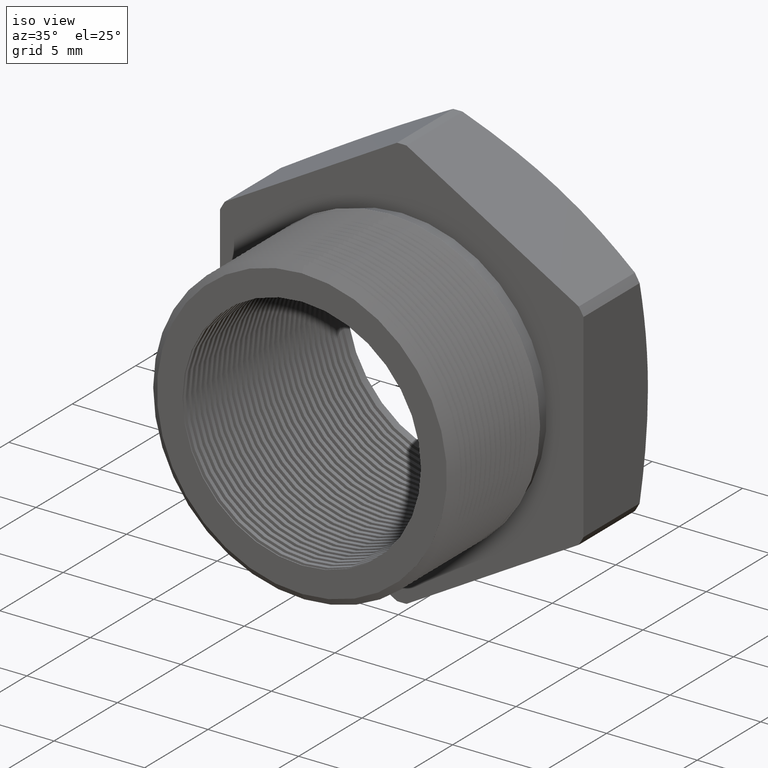
[diagram: clean part render]
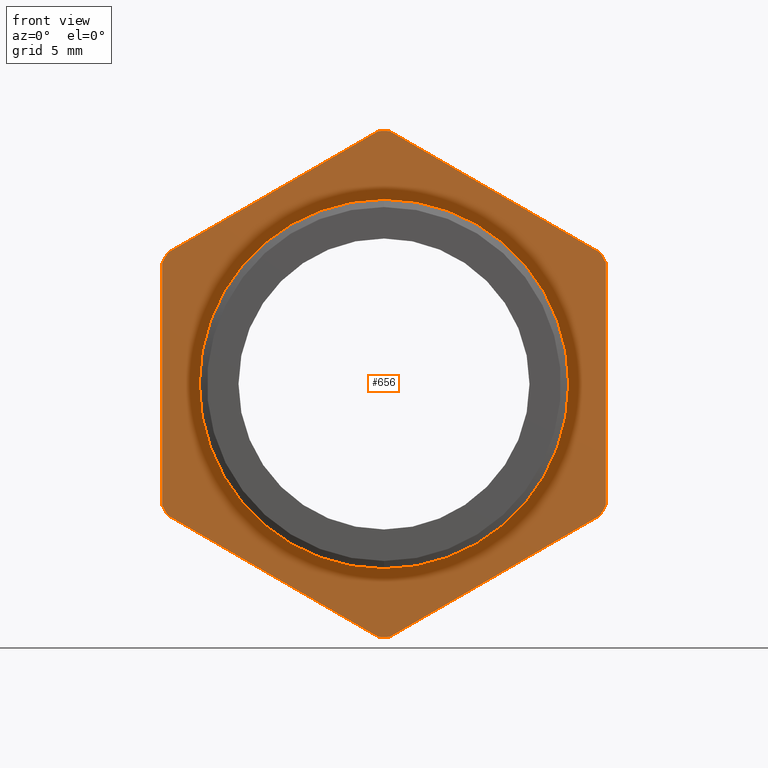
[diagram: tour spotlight — one face highlighted and labeled with its STEP entity id]
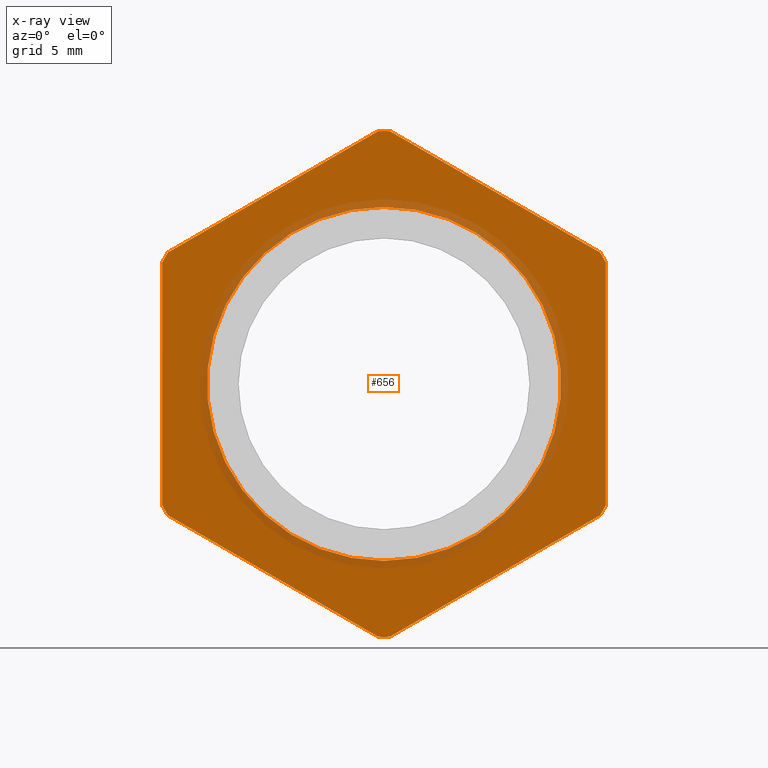
[diagram: x-ray of the same camera — body ghosted, this tour face saturated]
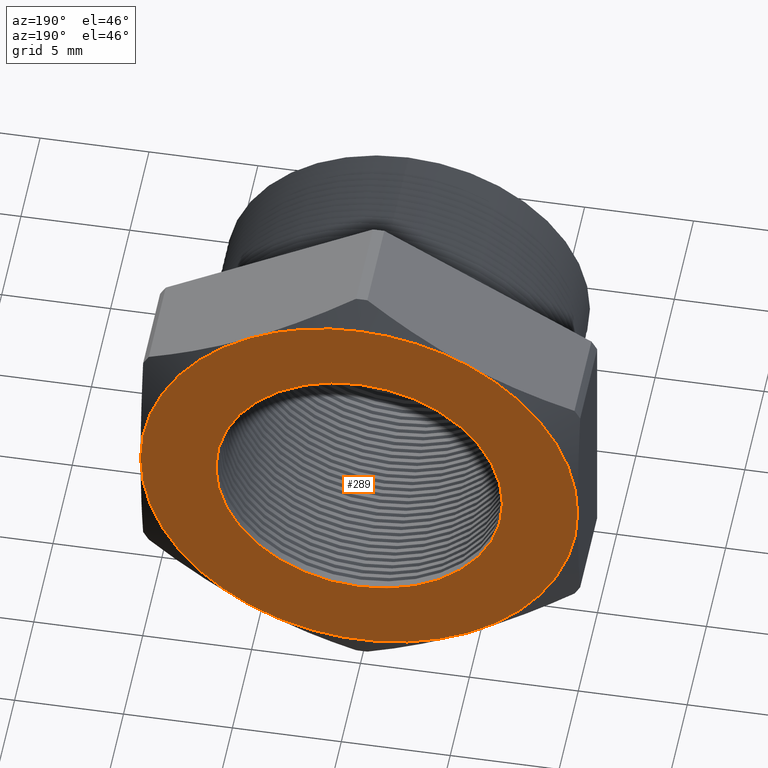
[diagram: tour spotlight — one face highlighted and labeled with its STEP entity id]
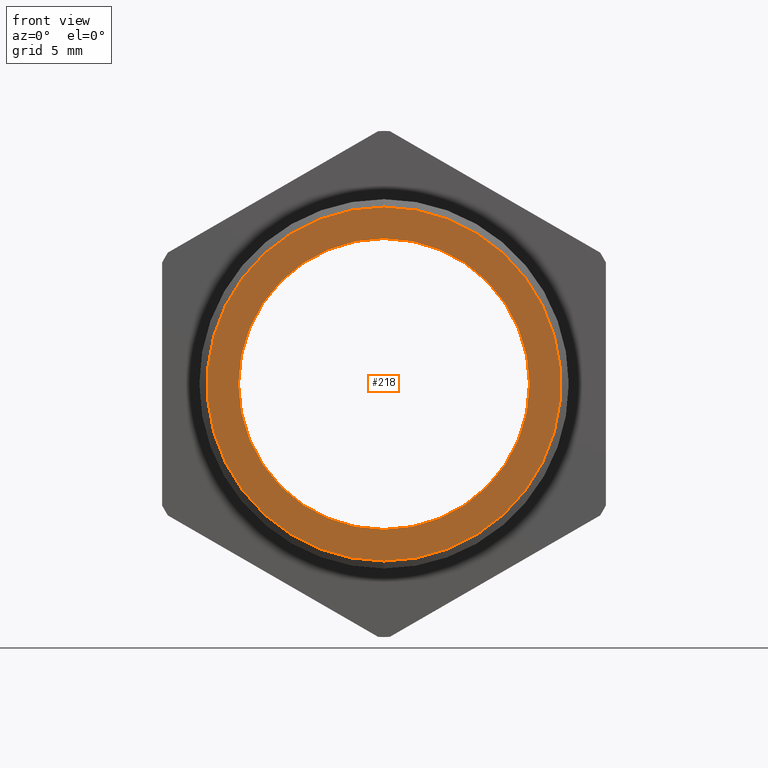
[diagram: tour spotlight — one face highlighted and labeled with its STEP entity id]
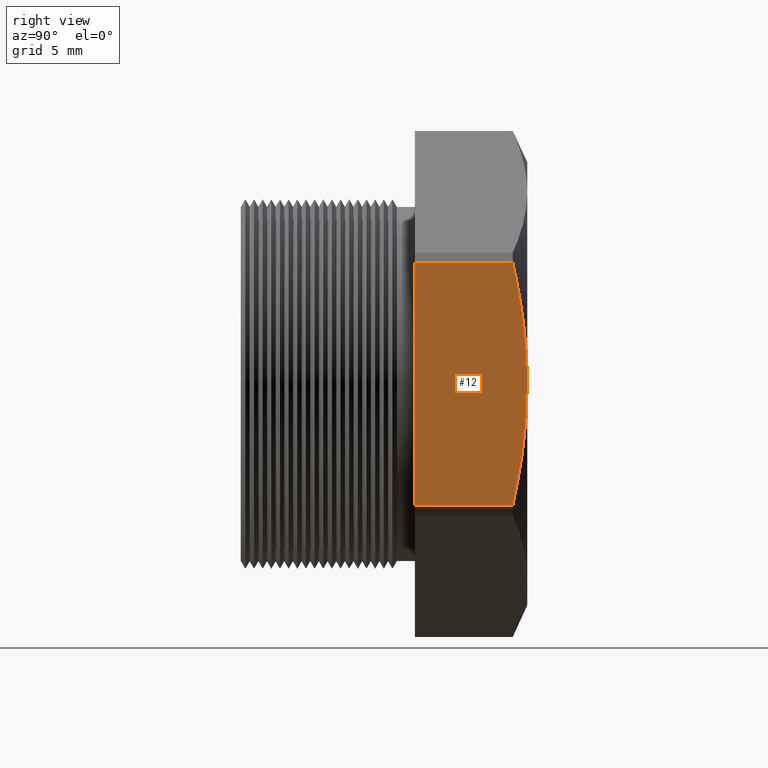
[diagram: tour spotlight — one face highlighted and labeled with its STEP entity id]
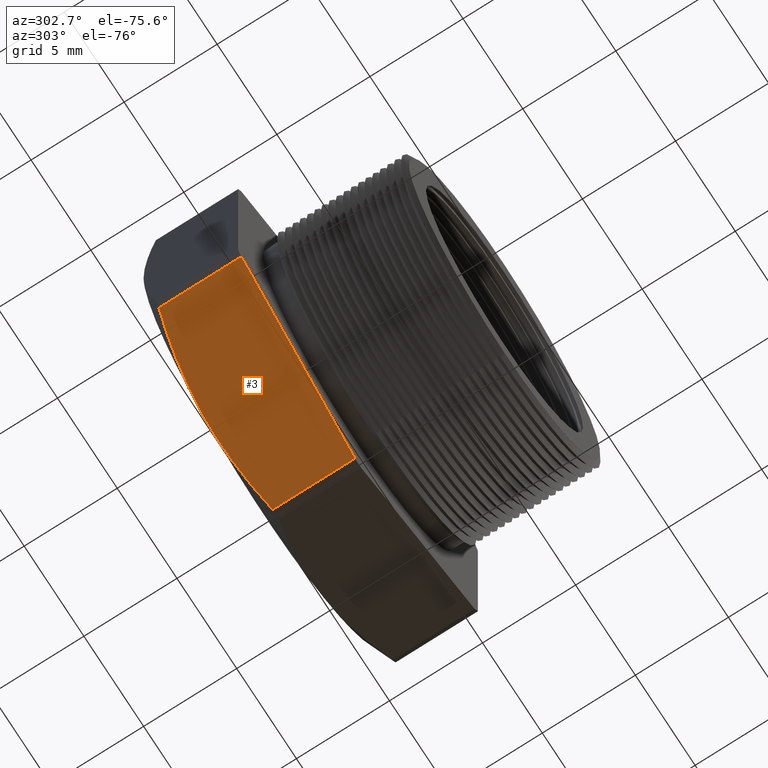
[diagram: tour spotlight — one face highlighted and labeled with its STEP entity id]
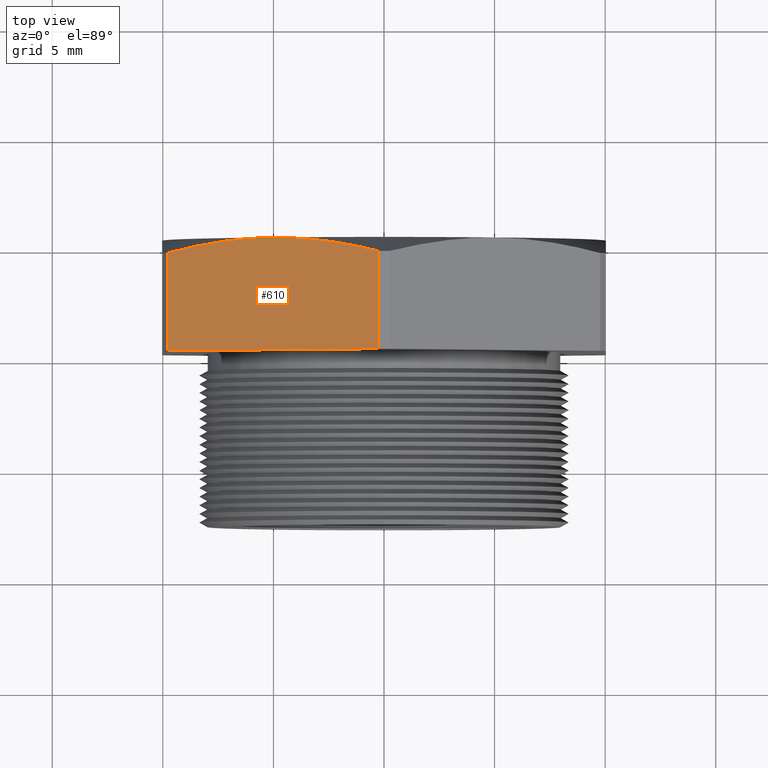
[diagram: tour spotlight — one face highlighted and labeled with its STEP entity id]
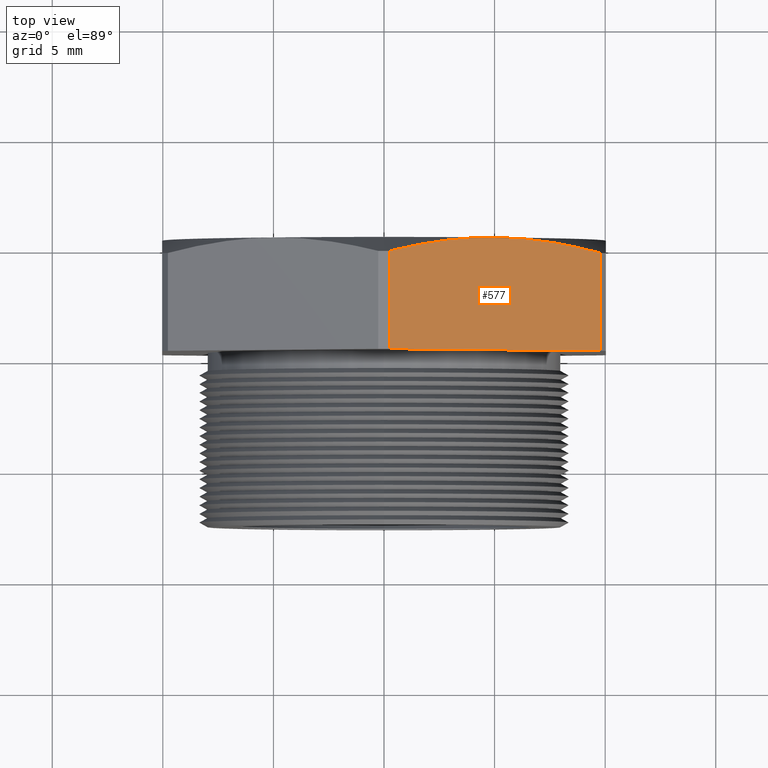
[diagram: tour spotlight — one face highlighted and labeled with its STEP entity id]
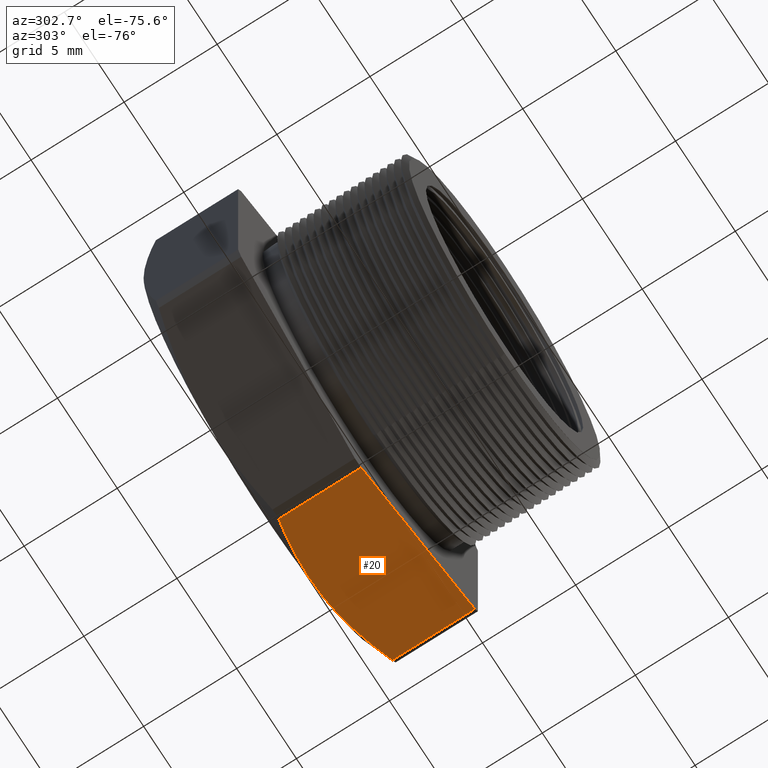
[diagram: tour spotlight — one face highlighted and labeled with its STEP entity id]
A machine part: a face-by-face anatomy tour. The part has 287 B-rep faces; the first image is the clean iso view, then the 8 largest visible faces are spotlighted one at a time (largest first), each with its STEP entity span.

Face 1 — front view, entity #656. An x-ray twin of the same camera follows (body ghosted, this face saturated) — the face is partly hidden behind the body. In plain terms, the highlighted planar face has unit normal (0, -1, -0).
Definition (entity closure, byte-faithful):
#10 = EDGE_CURVE ( 'NONE', #426, #474, #1532, .T. ) ;
#13 = EDGE_CURVE ( 'NONE', #366, #368, #1523, .T. ) ;
#23 = EDGE_CURVE ( 'NONE', #533, #305, #1590, .T. ) ;
#264 = VERTEX_POINT ( 'NONE', #2033 ) ;
#275 = EDGE_CURVE ( 'NONE', #278, #264, #2015, .T. ) ;
#278 = VERTEX_POINT ( 'NONE', #2008 ) ;
#305 = VERTEX_POINT ( 'NONE', #2074 ) ;
#338 = VERTEX_POINT ( 'NONE', #2141 ) ;
#366 = VERTEX_POINT ( 'NONE', #2210 ) ;
#368 = VERTEX_POINT ( 'NONE', #2207 ) ;
#371 = VERTEX_POINT ( 'NONE', #2200 ) ;
#376 = EDGE_CURVE ( 'NONE', #264, #366, #2195, .T. ) ;
#378 = EDGE_CURVE ( 'NONE', #305, #371, #2253, .T. ) ;
#426 = VERTEX_POINT ( 'NONE', #2333 ) ;
#428 = EDGE_CURVE ( 'NONE', #338, #426, #2332, .T. ) ;
#474 = VERTEX_POINT ( 'NONE', #2422 ) ;
#514 = EDGE_CURVE ( 'NONE', #368, #533, #2480, .T. ) ;
#523 = VERTEX_POINT ( 'NONE', #2525 ) ;
#529 = EDGE_CURVE ( 'NONE', #474, #523, #2515, .T. ) ;
#533 = VERTEX_POINT ( 'NONE', #2510 ) ;
#565 = VERTEX_POINT ( 'NONE', #2578 ) ;
#567 = EDGE_CURVE ( 'NONE', #571, #565, #2573, .T. ) ;
#571 = VERTEX_POINT ( 'NONE', #2567 ) ;
#583 = EDGE_CURVE ( 'NONE', #599, #586, #2618, .T. ) ;
#586 = VERTEX_POINT ( 'NONE', #2609 ) ;
#599 = VERTEX_POINT ( 'NONE', #2638 ) ;
#616 = EDGE_CURVE ( 'NONE', #371, #599, #2669, .T. ) ;
#648 = EDGE_CURVE ( 'NONE', #586, #338, #2731, .T. ) ;
#651 = EDGE_CURVE ( 'NONE', #523, #278, #2775, .T. ) ;
#653 = EDGE_LOOP ( 'NONE', ( #682, #678 ) ) ;
#656 = ADVANCED_FACE ( 'NONE', ( #2761, #2760 ), #2763, .T. ) ;
#663 = EDGE_CURVE ( 'NONE', #565, #571, #2804, .T. ) ;
#668 = ORIENTED_EDGE ( 'NONE', *, *, #648, .T. ) ;
#669 = ORIENTED_EDGE ( 'NONE', *, *, #428, .T. ) ;
#670 = ORIENTED_EDGE ( 'NONE', *, *, #616, .T. ) ;
#671 = ORIENTED_EDGE ( 'NONE', *, *, #583, .T. ) ;
#672 = EDGE_LOOP ( 'NONE', ( #674, #675, #673, #670, #671, #668, #669, #687, #689, #683, #684, #686, #685 ) ) ;
#673 = ORIENTED_EDGE ( 'NONE', *, *, #378, .T. ) ;
#674 = ORIENTED_EDGE ( 'NONE', *, *, #514, .T. ) ;
#675 = ORIENTED_EDGE ( 'NONE', *, *, #23, .T. ) ;
#678 = ORIENTED_EDGE ( 'NONE', *, *, #663, .F. ) ;
#682 = ORIENTED_EDGE ( 'NONE', *, *, #567, .F. ) ;
#683 = ORIENTED_EDGE ( 'NONE', *, *, #651, .T. ) ;
#684 = ORIENTED_EDGE ( 'NONE', *, *, #275, .T. ) ;
#685 = ORIENTED_EDGE ( 'NONE', *, *, #13, .T. ) ;
#686 = ORIENTED_EDGE ( 'NONE', *, *, #376, .T. ) ;
#687 = ORIENTED_EDGE ( 'NONE', *, *, #10, .T. ) ;
#689 = ORIENTED_EDGE ( 'NONE', *, *, #529, .T. ) ;
#1517 = CARTESIAN_POINT ( 'NONE',  ( 0.4337500000000000200, 0.2075548905829479300, -0.2056810333988043400 ) ) ;
#1523 = LINE ( 'NONE', #1517, #1576 ) ;
#1525 = DIRECTION ( 'NONE',  ( 0.0000000000000000000, 0.0000000000000000000, -1.000000000000000000 ) ) ;
#1526 = VECTOR ( 'NONE', #1525, 39.37007874015748100 ) ;
#1527 = CARTESIAN_POINT ( 'NONE',  ( -0.3949999999999999600, 0.2075548905829479300, 0.0000000000000000000 ) ) ;
#1532 = LINE ( 'NONE', #1527, #1526 ) ;
#1575 = DIRECTION ( 'NONE',  ( 0.8660254037844388200, 0.0000000000000000000, 0.4999999999999998300 ) ) ;
#1576 = VECTOR ( 'NONE', #1575, 39.37007874015748100 ) ;
#1587 = DIRECTION ( 'NONE',  ( -2.994746533912406200E-016, 0.0000000000000000000, 1.000000000000000000 ) ) ;
#1588 = VECTOR ( 'NONE', #1587, 39.37007874015748100 ) ;
#1589 = CARTESIAN_POINT ( 'NONE',  ( 0.3949999999999999600, 0.2075548905829479300, 2.395797227129924000E-017 ) ) ;
#1590 = LINE ( 'NONE', #1589, #1588 ) ;
#2008 = CARTESIAN_POINT ( 'NONE',  ( -0.01026000026703685300, 0.2075548905829479300, -0.4501830987437449000 ) ) ;
#2011 = DIRECTION ( 'NONE',  ( 0.0000000000000000000, 0.0000000000000000000, -1.000000000000000000 ) ) ;
#2012 = DIRECTION ( 'NONE',  ( -0.0000000000000000000, -1.000000000000000000, -0.0000000000000000000 ) ) ;
#2013 = CARTESIAN_POINT ( 'NONE',  ( 0.0000000000000000000, 0.2075548905829479300, 0.0000000000000000000 ) ) ;
#2014 = AXIS2_PLACEMENT_3D ( 'NONE', #2013, #2012, #2011 ) ;
#2015 = CIRCLE ( 'NONE', #2014, 0.4502999999999999800 ) ;
#2033 = CARTESIAN_POINT ( 'NONE',  ( 0.0000000000000000000, 0.2075548905829479300, -0.4502999999999999800 ) ) ;
#2074 = CARTESIAN_POINT ( 'NONE',  ( 0.3949999999999999100, 0.2075548905829479300, 0.2162061284977834200 ) ) ;
#2141 = CARTESIAN_POINT ( 'NONE',  ( -0.3847399997329629100, 0.2075548905829479300, 0.2339769702459617000 ) ) ;
#2193 = CARTESIAN_POINT ( 'NONE',  ( 0.0000000000000000000, 0.2075548905829479300, 0.0000000000000000000 ) ) ;
#2194 = AXIS2_PLACEMENT_3D ( 'NONE', #2193, #2255, #2254 ) ;
#2195 = CIRCLE ( 'NONE', #2194, 0.4502999999999999800 ) ;
#2200 = CARTESIAN_POINT ( 'NONE',  ( 0.3847399997329629100, 0.2075548905829479300, 0.2339769702459617000 ) ) ;
#2207 = CARTESIAN_POINT ( 'NONE',  ( 0.3847399997329628000, 0.2075548905829479300, -0.2339769702459618400 ) ) ;
#2210 = CARTESIAN_POINT ( 'NONE',  ( 0.01026000026703718800, 0.2075548905829479300, -0.4501830987437449000 ) ) ;
#2249 = DIRECTION ( 'NONE',  ( 0.0000000000000000000, 0.0000000000000000000, -1.000000000000000000 ) ) ;
#2250 = DIRECTION ( 'NONE',  ( -0.0000000000000000000, -1.000000000000000000, -0.0000000000000000000 ) ) ;
#2251 = CARTESIAN_POINT ( 'NONE',  ( 0.0000000000000000000, 0.2075548905829479300, 0.0000000000000000000 ) ) ;
#2252 = AXIS2_PLACEMENT_3D ( 'NONE', #2251, #2250, #2249 ) ;
#2253 = CIRCLE ( 'NONE', #2252, 0.4502999999999999800 ) ;
#2254 = DIRECTION ( 'NONE',  ( 0.0000000000000000000, 0.0000000000000000000, -1.000000000000000000 ) ) ;
#2255 = DIRECTION ( 'NONE',  ( -0.0000000000000000000, -1.000000000000000000, -0.0000000000000000000 ) ) ;
#2328 = DIRECTION ( 'NONE',  ( 0.0000000000000000000, 0.0000000000000000000, -1.000000000000000000 ) ) ;
#2329 = DIRECTION ( 'NONE',  ( -0.0000000000000000000, -1.000000000000000000, -0.0000000000000000000 ) ) ;
#2330 = CARTESIAN_POINT ( 'NONE',  ( 0.0000000000000000000, 0.2075548905829479300, 0.0000000000000000000 ) ) ;
#2331 = AXIS2_PLACEMENT_3D ( 'NONE', #2330, #2329, #2328 ) ;
#2332 = CIRCLE ( 'NONE', #2331, 0.4502999999999999800 ) ;
#2333 = CARTESIAN_POINT ( 'NONE',  ( -0.3949999999999999600, 0.2075548905829479300, 0.2162061284977833100 ) ) ;
#2422 = CARTESIAN_POINT ( 'NONE',  ( -0.3949999999999999600, 0.2075548905829479300, -0.2162061284977833100 ) ) ;
#2476 = DIRECTION ( 'NONE',  ( 0.0000000000000000000, 0.0000000000000000000, -1.000000000000000000 ) ) ;
#2477 = DIRECTION ( 'NONE',  ( -0.0000000000000000000, -1.000000000000000000, -0.0000000000000000000 ) ) ;
#2478 = CARTESIAN_POINT ( 'NONE',  ( 0.0000000000000000000, 0.2075548905829479300, 0.0000000000000000000 ) ) ;
#2479 = AXIS2_PLACEMENT_3D ( 'NONE', #2478, #2477, #2476 ) ;
#2480 = CIRCLE ( 'NONE', #2479, 0.4502999999999999800 ) ;
#2510 = CARTESIAN_POINT ( 'NONE',  ( 0.3950000000000000200, 0.2075548905829479300, -0.2162061284977832000 ) ) ;
#2511 = DIRECTION ( 'NONE',  ( 0.0000000000000000000, 0.0000000000000000000, -1.000000000000000000 ) ) ;
#2512 = DIRECTION ( 'NONE',  ( -0.0000000000000000000, -1.000000000000000000, -0.0000000000000000000 ) ) ;
#2513 = CARTESIAN_POINT ( 'NONE',  ( 0.0000000000000000000, 0.2075548905829479300, 0.0000000000000000000 ) ) ;
#2514 = AXIS2_PLACEMENT_3D ( 'NONE', #2513, #2512, #2511 ) ;
#2515 = CIRCLE ( 'NONE', #2514, 0.4502999999999999800 ) ;
#2525 = CARTESIAN_POINT ( 'NONE',  ( -0.3847399997329630800, 0.2075548905829479300, -0.2339769702459614000 ) ) ;
#2567 = CARTESIAN_POINT ( 'NONE',  ( 0.0000000000000000000, 0.2075548905829479300, -0.3150000000000000000 ) ) ;
#2569 = DIRECTION ( 'NONE',  ( 0.0000000000000000000, 0.0000000000000000000, -1.000000000000000000 ) ) ;
#2570 = DIRECTION ( 'NONE',  ( -0.0000000000000000000, -1.000000000000000000, -0.0000000000000000000 ) ) ;
#2571 = CARTESIAN_POINT ( 'NONE',  ( 0.0000000000000000000, 0.2075548905829479300, 0.0000000000000000000 ) ) ;
#2572 = AXIS2_PLACEMENT_3D ( 'NONE', #2571, #2570, #2569 ) ;
#2573 = CIRCLE ( 'NONE', #2572, 0.3150000000000000000 ) ;
#2578 = CARTESIAN_POINT ( 'NONE',  ( 3.857637417314162700E-017, 0.2075548905829479300, 0.3150000000000000000 ) ) ;
#2609 = CARTESIAN_POINT ( 'NONE',  ( -0.01026000026703707000, 0.2075548905829479300, 0.4501830987437449600 ) ) ;
#2610 = DIRECTION ( 'NONE',  ( 0.0000000000000000000, 0.0000000000000000000, -1.000000000000000000 ) ) ;
#2612 = DIRECTION ( 'NONE',  ( -0.0000000000000000000, -1.000000000000000000, -0.0000000000000000000 ) ) ;
#2613 = CARTESIAN_POINT ( 'NONE',  ( 0.0000000000000000000, 0.2075548905829479300, 0.0000000000000000000 ) ) ;
#2614 = AXIS2_PLACEMENT_3D ( 'NONE', #2613, #2612, #2610 ) ;
#2618 = CIRCLE ( 'NONE', #2614, 0.4502999999999999800 ) ;
#2638 = CARTESIAN_POINT ( 'NONE',  ( 0.01026000026703712500, 0.2075548905829479300, 0.4501830987437449000 ) ) ;
#2666 = DIRECTION ( 'NONE',  ( -0.8660254037844386000, 0.0000000000000000000, 0.5000000000000001100 ) ) ;
#2667 = VECTOR ( 'NONE', #2666, 39.37007874015748100 ) ;
#2668 = CARTESIAN_POINT ( 'NONE',  ( 0.4337500000000000200, 0.2075548905829479300, 0.2056810333988042000 ) ) ;
#2669 = LINE ( 'NONE', #2668, #2667 ) ;
#2722 = DIRECTION ( 'NONE',  ( -0.8660254037844388200, 0.0000000000000000000, -0.4999999999999998300 ) ) ;
#2723 = VECTOR ( 'NONE', #2722, 39.37007874015748100 ) ;
#2730 = CARTESIAN_POINT ( 'NONE',  ( 0.03875000000000009700, 0.2075548905829479300, 0.4784790355909023800 ) ) ;
#2731 = LINE ( 'NONE', #2730, #2723 ) ;
#2749 = DIRECTION ( 'NONE',  ( 0.0000000000000000000, 0.0000000000000000000, -1.000000000000000000 ) ) ;
#2750 = DIRECTION ( 'NONE',  ( 0.0000000000000000000, -1.000000000000000000, -0.0000000000000000000 ) ) ;
#2751 = CARTESIAN_POINT ( 'NONE',  ( 0.3150000000000000000, 0.2075548905829479300, 0.0000000000000000000 ) ) ;
#2759 = AXIS2_PLACEMENT_3D ( 'NONE', #2751, #2750, #2749 ) ;
#2760 = FACE_OUTER_BOUND ( 'NONE', #672, .T. ) ;
#2761 = FACE_BOUND ( 'NONE', #653, .T. ) ;
#2763 = PLANE ( 'NONE',  #2759 ) ;
#2764 = DIRECTION ( 'NONE',  ( 0.8660254037844386000, 0.0000000000000000000, -0.5000000000000001100 ) ) ;
#2765 = VECTOR ( 'NONE', #2764, 39.37007874015748100 ) ;
#2774 = CARTESIAN_POINT ( 'NONE',  ( 0.03874999999999996500, 0.2075548905829479300, -0.4784790355909022100 ) ) ;
#2775 = LINE ( 'NONE', #2774, #2765 ) ;
#2800 = DIRECTION ( 'NONE',  ( 0.0000000000000000000, 0.0000000000000000000, -1.000000000000000000 ) ) ;
#2801 = DIRECTION ( 'NONE',  ( -0.0000000000000000000, -1.000000000000000000, -0.0000000000000000000 ) ) ;
#2802 = CARTESIAN_POINT ( 'NONE',  ( 0.0000000000000000000, 0.2075548905829479300, 0.0000000000000000000 ) ) ;
#2803 = AXIS2_PLACEMENT_3D ( 'NONE', #2802, #2801, #2800 ) ;
#2804 = CIRCLE ( 'NONE', #2803, 0.3150000000000000000 ) ;

Face 2 — auxiliary view, entity #289. In plain terms, the highlighted planar face has unit normal (0, 1, 0).
Definition (entity closure, byte-faithful):
#268 = EDGE_CURVE ( 'NONE', #561, #554, #2020, .T. ) ;
#289 = ADVANCED_FACE ( 'NONE', ( #2043, #2042 ), #2041, .T. ) ;
#294 = EDGE_LOOP ( 'NONE', ( #298, #336 ) ) ;
#298 = ORIENTED_EDGE ( 'NONE', *, *, #268, .T. ) ;
#308 = VERTEX_POINT ( 'NONE', #2072 ) ;
#310 = VERTEX_POINT ( 'NONE', #2071 ) ;
#312 = ORIENTED_EDGE ( 'NONE', *, *, #6884, .T. ) ;
#314 = VERTEX_POINT ( 'NONE', #2129 ) ;
#317 = ORIENTED_EDGE ( 'NONE', *, *, #321, .T. ) ;
#318 = ORIENTED_EDGE ( 'NONE', *, *, #331, .T. ) ;
#321 = EDGE_CURVE ( 'NONE', #6935, #310, #2121, .T. ) ;
#322 = EDGE_CURVE ( 'NONE', #329, #6885, #2116, .T. ) ;
#323 = EDGE_LOOP ( 'NONE', ( #325, #312, #317, #326, #318, #353, #348 ) ) ;
#325 = ORIENTED_EDGE ( 'NONE', *, *, #322, .T. ) ;
#326 = ORIENTED_EDGE ( 'NONE', *, *, #327, .T. ) ;
#327 = EDGE_CURVE ( 'NONE', #310, #314, #2111, .T. ) ;
#329 = VERTEX_POINT ( 'NONE', #2161 ) ;
#331 = EDGE_CURVE ( 'NONE', #314, #308, #2158, .T. ) ;
#336 = ORIENTED_EDGE ( 'NONE', *, *, #562, .T. ) ;
#340 = EDGE_CURVE ( 'NONE', #352, #329, #2192, .T. ) ;
#348 = ORIENTED_EDGE ( 'NONE', *, *, #340, .T. ) ;
#352 = VERTEX_POINT ( 'NONE', #2170 ) ;
#353 = ORIENTED_EDGE ( 'NONE', *, *, #358, .T. ) ;
#358 = EDGE_CURVE ( 'NONE', #308, #352, #2162, .T. ) ;
#554 = VERTEX_POINT ( 'NONE', #2597 ) ;
#561 = VERTEX_POINT ( 'NONE', #2591 ) ;
#562 = EDGE_CURVE ( 'NONE', #554, #561, #2585, .T. ) ;
#2016 = DIRECTION ( 'NONE',  ( 0.0000000000000000000, 0.0000000000000000000, -1.000000000000000000 ) ) ;
#2017 = DIRECTION ( 'NONE',  ( -0.0000000000000000000, -1.000000000000000000, -0.0000000000000000000 ) ) ;
#2018 = CARTESIAN_POINT ( 'NONE',  ( 0.0000000000000000000, 0.4075548905829479200, 0.0000000000000000000 ) ) ;
#2019 = AXIS2_PLACEMENT_3D ( 'NONE', #2018, #2017, #2016 ) ;
#2020 = CIRCLE ( 'NONE', #2019, 0.2589880461203001900 ) ;
#2037 = DIRECTION ( 'NONE',  ( 0.0000000000000000000, 1.000000000000000000, 0.0000000000000000000 ) ) ;
#2038 = AXIS2_PLACEMENT_3D ( 'NONE', #2040, #2037, #2101 ) ;
#2040 = CARTESIAN_POINT ( 'NONE',  ( 0.4502999999999999800, 0.4075548905829479200, 0.0000000000000000000 ) ) ;
#2041 = PLANE ( 'NONE',  #2038 ) ;
#2042 = FACE_OUTER_BOUND ( 'NONE', #323, .T. ) ;
#2043 = FACE_BOUND ( 'NONE', #294, .T. ) ;
#2071 = CARTESIAN_POINT ( 'NONE',  ( 0.3949999999999999600, 0.4075548905829479200, 1.182924880895400300E-016 ) ) ;
#2072 = CARTESIAN_POINT ( 'NONE',  ( -0.1974999999999999800, 0.4075548905829479200, -0.3420800344948531400 ) ) ;
#2101 = DIRECTION ( 'NONE',  ( 0.0000000000000000000, -0.0000000000000000000, 1.000000000000000000 ) ) ;
#2107 = DIRECTION ( 'NONE',  ( 0.0000000000000000000, 0.0000000000000000000, 1.000000000000000000 ) ) ;
#2108 = DIRECTION ( 'NONE',  ( 0.0000000000000000000, 1.000000000000000000, 0.0000000000000000000 ) ) ;
#2109 = CARTESIAN_POINT ( 'NONE',  ( 0.0000000000000000000, 0.4075548905829479200, 0.0000000000000000000 ) ) ;
#2110 = AXIS2_PLACEMENT_3D ( 'NONE', #2109, #2108, #2107 ) ;
#2111 = CIRCLE ( 'NONE', #2110, 0.3949999999999999600 ) ;
#2112 = DIRECTION ( 'NONE',  ( 0.0000000000000000000, 0.0000000000000000000, 1.000000000000000000 ) ) ;
#2113 = DIRECTION ( 'NONE',  ( 0.0000000000000000000, 1.000000000000000000, 0.0000000000000000000 ) ) ;
#2114 = CARTESIAN_POINT ( 'NONE',  ( 0.0000000000000000000, 0.4075548905829479200, 0.0000000000000000000 ) ) ;
#2115 = AXIS2_PLACEMENT_3D ( 'NONE', #2114, #2113, #2112 ) ;
#2116 = CIRCLE ( 'NONE', #2115, 0.3949999999999999600 ) ;
#2117 = DIRECTION ( 'NONE',  ( 0.0000000000000000000, 0.0000000000000000000, 1.000000000000000000 ) ) ;
#2118 = DIRECTION ( 'NONE',  ( 0.0000000000000000000, 1.000000000000000000, 0.0000000000000000000 ) ) ;
#2119 = CARTESIAN_POINT ( 'NONE',  ( 0.0000000000000000000, 0.4075548905829479200, 0.0000000000000000000 ) ) ;
#2120 = AXIS2_PLACEMENT_3D ( 'NONE', #2119, #2118, #2117 ) ;
#2121 = CIRCLE ( 'NONE', #2120, 0.3949999999999999600 ) ;
#2129 = CARTESIAN_POINT ( 'NONE',  ( 0.1974999999999999800, 0.4075548905829479200, -0.3420800344948533600 ) ) ;
#2138 = CARTESIAN_POINT ( 'NONE',  ( 0.0000000000000000000, 0.4075548905829479200, 0.0000000000000000000 ) ) ;
#2147 = DIRECTION ( 'NONE',  ( 0.0000000000000000000, 0.0000000000000000000, 1.000000000000000000 ) ) ;
#2148 = DIRECTION ( 'NONE',  ( 0.0000000000000000000, 1.000000000000000000, 0.0000000000000000000 ) ) ;
#2149 = AXIS2_PLACEMENT_3D ( 'NONE', #2159, #2148, #2147 ) ;
#2158 = CIRCLE ( 'NONE', #2149, 0.3949999999999999600 ) ;
#2159 = CARTESIAN_POINT ( 'NONE',  ( 0.0000000000000000000, 0.4075548905829479200, 0.0000000000000000000 ) ) ;
#2161 = CARTESIAN_POINT ( 'NONE',  ( -0.1974999999999999800, 0.4075548905829479200, 0.3420800344948533600 ) ) ;
#2162 = CIRCLE ( 'NONE', #2224, 0.3949999999999999600 ) ;
#2170 = CARTESIAN_POINT ( 'NONE',  ( -0.3949999999999999600, 0.4075548905829479200, 0.0000000000000000000 ) ) ;
#2189 = DIRECTION ( 'NONE',  ( 0.0000000000000000000, 0.0000000000000000000, 1.000000000000000000 ) ) ;
#2190 = DIRECTION ( 'NONE',  ( 0.0000000000000000000, 1.000000000000000000, 0.0000000000000000000 ) ) ;
#2191 = AXIS2_PLACEMENT_3D ( 'NONE', #2138, #2190, #2189 ) ;
#2192 = CIRCLE ( 'NONE', #2191, 0.3949999999999999600 ) ;
#2221 = DIRECTION ( 'NONE',  ( 0.0000000000000000000, 0.0000000000000000000, 1.000000000000000000 ) ) ;
#2222 = DIRECTION ( 'NONE',  ( 0.0000000000000000000, 1.000000000000000000, 0.0000000000000000000 ) ) ;
#2223 = CARTESIAN_POINT ( 'NONE',  ( 0.0000000000000000000, 0.4075548905829479200, 0.0000000000000000000 ) ) ;
#2224 = AXIS2_PLACEMENT_3D ( 'NONE', #2223, #2222, #2221 ) ;
#2581 = DIRECTION ( 'NONE',  ( 0.0000000000000000000, 0.0000000000000000000, -1.000000000000000000 ) ) ;
#2582 = DIRECTION ( 'NONE',  ( -0.0000000000000000000, -1.000000000000000000, -0.0000000000000000000 ) ) ;
#2583 = CARTESIAN_POINT ( 'NONE',  ( 0.0000000000000000000, 0.4075548905829479200, 0.0000000000000000000 ) ) ;
#2584 = AXIS2_PLACEMENT_3D ( 'NONE', #2583, #2582, #2581 ) ;
#2585 = CIRCLE ( 'NONE', #2584, 0.2589880461203001900 ) ;
#2591 = CARTESIAN_POINT ( 'NONE',  ( 0.0000000000000000000, 0.4075548905829479200, -0.2589880461203001900 ) ) ;
#2597 = CARTESIAN_POINT ( 'NONE',  ( 3.171688816986526800E-017, 0.4075548905829479200, 0.2589880461203001900 ) ) ;
#5289 = CARTESIAN_POINT ( 'NONE',  ( 0.0000000000000000000, 0.4075548905829479200, 0.3949999999999999600 ) ) ;
#5290 = DIRECTION ( 'NONE',  ( 0.0000000000000000000, 0.0000000000000000000, 1.000000000000000000 ) ) ;
#5291 = DIRECTION ( 'NONE',  ( 0.0000000000000000000, 1.000000000000000000, 0.0000000000000000000 ) ) ;
#5292 = CARTESIAN_POINT ( 'NONE',  ( 0.0000000000000000000, 0.4075548905829479200, 0.0000000000000000000 ) ) ;
#5293 = AXIS2_PLACEMENT_3D ( 'NONE', #5292, #5291, #5290 ) ;
#5294 = CIRCLE ( 'NONE', #5293, 0.3949999999999999600 ) ;
#5429 = CARTESIAN_POINT ( 'NONE',  ( 0.1975000000000001200, 0.4075548905829479700, 0.3420800344948533000 ) ) ;
#6884 = EDGE_CURVE ( 'NONE', #6885, #6935, #5294, .T. ) ;
#6885 = VERTEX_POINT ( 'NONE', #5289 ) ;
#6935 = VERTEX_POINT ( 'NONE', #5429 ) ;

Face 3 — front view, entity #218. In plain terms, the highlighted planar face has unit normal (0, -1, -0).
Definition (entity closure, byte-faithful):
#67 = ORIENTED_EDGE ( 'NONE', *, *, #524, .F. ) ;
#101 = ORIENTED_EDGE ( 'NONE', *, *, #131, .F. ) ;
#106 = EDGE_LOOP ( 'NONE', ( #101, #67 ) ) ;
#115 = ORIENTED_EDGE ( 'NONE', *, *, #244, .T. ) ;
#131 = EDGE_CURVE ( 'NONE', #542, #483, #1766, .T. ) ;
#144 = ORIENTED_EDGE ( 'NONE', *, *, #494, .T. ) ;
#147 = EDGE_LOOP ( 'NONE', ( #144, #115 ) ) ;
#218 = ADVANCED_FACE ( 'NONE', ( #1917, #1916 ), #1915, .T. ) ;
#244 = EDGE_CURVE ( 'NONE', #496, #495, #2005, .T. ) ;
#483 = VERTEX_POINT ( 'NONE', #2471 ) ;
#494 = EDGE_CURVE ( 'NONE', #495, #496, #2454, .T. ) ;
#495 = VERTEX_POINT ( 'NONE', #2449 ) ;
#496 = VERTEX_POINT ( 'NONE', #2448 ) ;
#524 = EDGE_CURVE ( 'NONE', #483, #542, #2524, .T. ) ;
#542 = VERTEX_POINT ( 'NONE', #2548 ) ;
#1762 = DIRECTION ( 'NONE',  ( 0.0000000000000000000, 0.0000000000000000000, -1.000000000000000000 ) ) ;
#1763 = DIRECTION ( 'NONE',  ( -0.0000000000000000000, -1.000000000000000000, -0.0000000000000000000 ) ) ;
#1764 = CARTESIAN_POINT ( 'NONE',  ( 0.0000000000000000000, -0.1024451094170520500, 0.0000000000000000000 ) ) ;
#1765 = AXIS2_PLACEMENT_3D ( 'NONE', #1764, #1763, #1762 ) ;
#1766 = CIRCLE ( 'NONE', #1765, 0.2589880461203001900 ) ;
#1911 = DIRECTION ( 'NONE',  ( 0.0000000000000000000, 0.0000000000000000000, -1.000000000000000000 ) ) ;
#1912 = DIRECTION ( 'NONE',  ( 0.0000000000000000000, -1.000000000000000000, -0.0000000000000000000 ) ) ;
#1913 = AXIS2_PLACEMENT_3D ( 'NONE', #1914, #1912, #1911 ) ;
#1914 = CARTESIAN_POINT ( 'NONE',  ( 0.2589880461203001900, -0.1024451094170520500, 0.0000000000000000000 ) ) ;
#1915 = PLANE ( 'NONE',  #1913 ) ;
#1916 = FACE_BOUND ( 'NONE', #106, .T. ) ;
#1917 = FACE_OUTER_BOUND ( 'NONE', #147, .T. ) ;
#2001 = DIRECTION ( 'NONE',  ( 0.0000000000000000000, 0.0000000000000000000, -1.000000000000000000 ) ) ;
#2002 = DIRECTION ( 'NONE',  ( -0.0000000000000000000, -1.000000000000000000, -0.0000000000000000000 ) ) ;
#2003 = CARTESIAN_POINT ( 'NONE',  ( 0.0000000000000000000, -0.1024451094170520500, 0.0000000000000000000 ) ) ;
#2004 = AXIS2_PLACEMENT_3D ( 'NONE', #2003, #2002, #2001 ) ;
#2005 = CIRCLE ( 'NONE', #2004, 0.3150000000000000000 ) ;
#2448 = CARTESIAN_POINT ( 'NONE',  ( 3.857637417314162700E-017, -0.1024451094170520500, 0.3150000000000000000 ) ) ;
#2449 = CARTESIAN_POINT ( 'NONE',  ( 0.0000000000000000000, -0.1024451094170520500, -0.3150000000000000000 ) ) ;
#2450 = DIRECTION ( 'NONE',  ( 0.0000000000000000000, 0.0000000000000000000, -1.000000000000000000 ) ) ;
#2451 = DIRECTION ( 'NONE',  ( -0.0000000000000000000, -1.000000000000000000, -0.0000000000000000000 ) ) ;
#2452 = CARTESIAN_POINT ( 'NONE',  ( 0.0000000000000000000, -0.1024451094170520500, 0.0000000000000000000 ) ) ;
#2453 = AXIS2_PLACEMENT_3D ( 'NONE', #2452, #2451, #2450 ) ;
#2454 = CIRCLE ( 'NONE', #2453, 0.3150000000000000000 ) ;
#2471 = CARTESIAN_POINT ( 'NONE',  ( 3.171688816986526800E-017, -0.1024451094170520500, 0.2589880461203001900 ) ) ;
#2520 = DIRECTION ( 'NONE',  ( 0.0000000000000000000, 0.0000000000000000000, -1.000000000000000000 ) ) ;
#2521 = DIRECTION ( 'NONE',  ( -0.0000000000000000000, -1.000000000000000000, -0.0000000000000000000 ) ) ;
#2522 = CARTESIAN_POINT ( 'NONE',  ( 0.0000000000000000000, -0.1024451094170520500, 0.0000000000000000000 ) ) ;
#2523 = AXIS2_PLACEMENT_3D ( 'NONE', #2522, #2521, #2520 ) ;
#2524 = CIRCLE ( 'NONE', #2523, 0.2589880461203001900 ) ;
#2548 = CARTESIAN_POINT ( 'NONE',  ( 0.0000000000000000000, -0.1024451094170520500, -0.2589880461203001900 ) ) ;

Face 4 — right view, entity #12. In plain terms, the highlighted planar face has unit normal (1, -0, 0).
Definition (entity closure, byte-faithful):
#8 = ORIENTED_EDGE ( 'NONE', *, *, #23, .F. ) ;
#11 = ORIENTED_EDGE ( 'NONE', *, *, #349, .F. ) ;
#12 = ADVANCED_FACE ( 'NONE', ( #1524 ), #1522, .T. ) ;
#23 = EDGE_CURVE ( 'NONE', #533, #305, #1590, .T. ) ;
#42 = ORIENTED_EDGE ( 'NONE', *, *, #330, .T. ) ;
#44 = ORIENTED_EDGE ( 'NONE', *, *, #58, .T. ) ;
#58 = EDGE_CURVE ( 'NONE', #350, #310, #1657, .T. ) ;
#305 = VERTEX_POINT ( 'NONE', #2074 ) ;
#307 = VERTEX_POINT ( 'NONE', #2073 ) ;
#310 = VERTEX_POINT ( 'NONE', #2071 ) ;
#330 = EDGE_CURVE ( 'NONE', #310, #307, #2160, .T. ) ;
#344 = EDGE_CURVE ( 'NONE', #350, #533, #2188, .T. ) ;
#349 = EDGE_CURVE ( 'NONE', #305, #307, #2175, .T. ) ;
#350 = VERTEX_POINT ( 'NONE', #2171 ) ;
#533 = VERTEX_POINT ( 'NONE', #2510 ) ;
#1518 = DIRECTION ( 'NONE',  ( 2.994746533912406200E-016, 0.0000000000000000000, -1.000000000000000000 ) ) ;
#1519 = DIRECTION ( 'NONE',  ( 1.000000000000000000, -0.0000000000000000000, 2.994746533912406200E-016 ) ) ;
#1520 = CARTESIAN_POINT ( 'NONE',  ( 0.3950000000000000200, 0.4075548905829479700, -0.2280533563299023100 ) ) ;
#1521 = AXIS2_PLACEMENT_3D ( 'NONE', #1520, #1519, #1518 ) ;
#1522 = PLANE ( 'NONE',  #1521 ) ;
#1524 = FACE_OUTER_BOUND ( 'NONE', #7430, .T. ) ;
#1587 = DIRECTION ( 'NONE',  ( -2.994746533912406200E-016, 0.0000000000000000000, 1.000000000000000000 ) ) ;
#1588 = VECTOR ( 'NONE', #1587, 39.37007874015748100 ) ;
#1589 = CARTESIAN_POINT ( 'NONE',  ( 0.3949999999999999600, 0.2075548905829479300, 2.395797227129924000E-017 ) ) ;
#1590 = LINE ( 'NONE', #1589, #1588 ) ;
#1649 = CARTESIAN_POINT ( 'NONE',  ( 0.3949999999999999600, 0.4075548905829479200, 1.182924880895400300E-016 ) ) ;
#1650 = CARTESIAN_POINT ( 'NONE',  ( 0.3950000000000000200, 0.4075548905829479700, -0.03615071496387482800 ) ) ;
#1651 = CARTESIAN_POINT ( 'NONE',  ( 0.3949999999999999100, 0.4052021354330004300, -0.07226365342513009500 ) ) ;
#1652 = CARTESIAN_POINT ( 'NONE',  ( 0.3950000000000000200, 0.3963016774528868600, -0.1444221750803342500 ) ) ;
#1653 = CARTESIAN_POINT ( 'NONE',  ( 0.3949999999999999600, 0.3897411411158596700, -0.1805949250355400000 ) ) ;
#1654 = CARTESIAN_POINT ( 'NONE',  ( 0.3950000000000000200, 0.3817680770869821800, -0.2162061284977888400 ) ) ;
#1657 = B_SPLINE_CURVE_WITH_KNOTS ( 'NONE', 3,
 ( #1654, #1653, #1652, #1651, #1650, #1649 ),
 .UNSPECIFIED., .F., .F.,
 ( 4, 2, 4 ),
 ( 0.01028762119642890300, 0.01305891928254412900, 0.01583021736865935700 ),
 .UNSPECIFIED. ) ;
#2071 = CARTESIAN_POINT ( 'NONE',  ( 0.3949999999999999600, 0.4075548905829479200, 1.182924880895400300E-016 ) ) ;
#2073 = CARTESIAN_POINT ( 'NONE',  ( 0.3949999999999999100, 0.3817680770869766300, 0.2162061284977834200 ) ) ;
#2074 = CARTESIAN_POINT ( 'NONE',  ( 0.3949999999999999100, 0.2075548905829479300, 0.2162061284977834200 ) ) ;
#2150 = CARTESIAN_POINT ( 'NONE',  ( 0.3949999999999999100, 0.3817680770869766300, 0.2162061284977834200 ) ) ;
#2151 = CARTESIAN_POINT ( 'NONE',  ( 0.3949999999999999100, 0.3857293561114451500, 0.1985133177038343500 ) ) ;
#2152 = CARTESIAN_POINT ( 'NONE',  ( 0.3949999999999999600, 0.3893452266422826600, 0.1806961926987057700 ) ) ;
#2153 = CARTESIAN_POINT ( 'NONE',  ( 0.3949999999999999600, 0.3957288236683330100, 0.1447566914896517800 ) ) ;
#2154 = CARTESIAN_POINT ( 'NONE',  ( 0.3949999999999999100, 0.3984971256823316400, 0.1265988345956360600 ) ) ;
#2155 = CARTESIAN_POINT ( 'NONE',  ( 0.3949999999999999600, 0.4052039801787641300, 0.07229683291637394000 ) ) ;
#2156 = CARTESIAN_POINT ( 'NONE',  ( 0.3950000000000000200, 0.4075548905829480300, 0.03612954301675724800 ) ) ;
#2157 = CARTESIAN_POINT ( 'NONE',  ( 0.3949999999999999600, 0.4075548905829479200, 1.182924880895400300E-016 ) ) ;
#2160 = B_SPLINE_CURVE_WITH_KNOTS ( 'NONE', 3,
 ( #2157, #2156, #2155, #2154, #2153, #2152, #2151, #2150 ),
 .UNSPECIFIED., .F., .F.,
 ( 4, 2, 2, 4 ),
 ( 0.01583021736865935700, 0.01859989242251684400, 0.01998472994944558800, 0.02136956747637433100 ),
 .UNSPECIFIED. ) ;
#2171 = CARTESIAN_POINT ( 'NONE',  ( 0.3950000000000000200, 0.3817680770869821800, -0.2162061284977888400 ) ) ;
#2172 = DIRECTION ( 'NONE',  ( 0.0000000000000000000, 1.000000000000000000, 0.0000000000000000000 ) ) ;
#2173 = VECTOR ( 'NONE', #2172, 39.37007874015748100 ) ;
#2174 = CARTESIAN_POINT ( 'NONE',  ( 0.3949999999999999100, 0.0000000000000000000, 0.2162061284977834200 ) ) ;
#2175 = LINE ( 'NONE', #2174, #2173 ) ;
#2185 = DIRECTION ( 'NONE',  ( -0.0000000000000000000, -1.000000000000000000, -0.0000000000000000000 ) ) ;
#2186 = VECTOR ( 'NONE', #2185, 39.37007874015748100 ) ;
#2187 = CARTESIAN_POINT ( 'NONE',  ( 0.3950000000000000200, 0.0000000000000000000, -0.2162061284977832000 ) ) ;
#2188 = LINE ( 'NONE', #2187, #2186 ) ;
#2510 = CARTESIAN_POINT ( 'NONE',  ( 0.3950000000000000200, 0.2075548905829479300, -0.2162061284977832000 ) ) ;
#7429 = ORIENTED_EDGE ( 'NONE', *, *, #344, .F. ) ;
#7430 = EDGE_LOOP ( 'NONE', ( #7429, #44, #42, #11, #8 ) ) ;

Face 5 — auxiliary view, entity #3. In plain terms, the highlighted planar face has unit normal (-0.5, 0, -0.866).
Definition (entity closure, byte-faithful):
#3 = ADVANCED_FACE ( 'NONE', ( #1534 ), #1533, .T. ) ;
#21 = EDGE_CURVE ( 'NONE', #520, #308, #1602, .T. ) ;
#278 = VERTEX_POINT ( 'NONE', #2008 ) ;
#279 = EDGE_CURVE ( 'NONE', #278, #304, #2067, .T. ) ;
#304 = VERTEX_POINT ( 'NONE', #2075 ) ;
#308 = VERTEX_POINT ( 'NONE', #2072 ) ;
#516 = EDGE_CURVE ( 'NONE', #520, #523, #2536, .T. ) ;
#520 = VERTEX_POINT ( 'NONE', #2531 ) ;
#523 = VERTEX_POINT ( 'NONE', #2525 ) ;
#637 = ORIENTED_EDGE ( 'NONE', *, *, #279, .F. ) ;
#651 = EDGE_CURVE ( 'NONE', #523, #278, #2775, .T. ) ;
#652 = ORIENTED_EDGE ( 'NONE', *, *, #651, .F. ) ;
#654 = EDGE_CURVE ( 'NONE', #308, #304, #2762, .T. ) ;
#655 = ORIENTED_EDGE ( 'NONE', *, *, #654, .T. ) ;
#1528 = DIRECTION ( 'NONE',  ( -0.8660254037844386000, 0.0000000000000000000, 0.5000000000000001100 ) ) ;
#1529 = DIRECTION ( 'NONE',  ( -0.5000000000000001100, 0.0000000000000000000, -0.8660254037844386000 ) ) ;
#1530 = CARTESIAN_POINT ( 'NONE',  ( -0.3949999999999999600, 0.4075548905829479700, -0.2280533563299020300 ) ) ;
#1531 = AXIS2_PLACEMENT_3D ( 'NONE', #1530, #1529, #1528 ) ;
#1533 = PLANE ( 'NONE',  #1531 ) ;
#1534 = FACE_OUTER_BOUND ( 'NONE', #7428, .T. ) ;
#1593 = CARTESIAN_POINT ( 'NONE',  ( -0.1974999999999999800, 0.4075548905829479200, -0.3420800344948531400 ) ) ;
#1594 = CARTESIAN_POINT ( 'NONE',  ( -0.2289182622552070300, 0.4075548905829479700, -0.3239406923243391400 ) ) ;
#1595 = CARTESIAN_POINT ( 'NONE',  ( -0.2602199223343858400, 0.4051865378565923100, -0.3058686704515429800 ) ) ;
#1596 = CARTESIAN_POINT ( 'NONE',  ( -0.3226184986981740500, 0.3962912005447679100, -0.2698428355908605300 ) ) ;
#1597 = CARTESIAN_POINT ( 'NONE',  ( -0.3537166105170322400, 0.3897884989263424300, -0.2518883323609535400 ) ) ;
#1598 = CARTESIAN_POINT ( 'NONE',  ( -0.3847399997329630800, 0.3817680770869766300, -0.2339769702459614000 ) ) ;
#1602 = B_SPLINE_CURVE_WITH_KNOTS ( 'NONE', 3,
 ( #1598, #1597, #1596, #1595, #1594, #1593 ),
 .UNSPECIFIED., .F., .F.,
 ( 4, 2, 4 ),
 ( 2.335025902589511500E-007, 0.002760212844509916600, 0.005520192186429574200 ),
 .UNSPECIFIED. ) ;
#2008 = CARTESIAN_POINT ( 'NONE',  ( -0.01026000026703685300, 0.2075548905829479300, -0.4501830987437449000 ) ) ;
#2064 = DIRECTION ( 'NONE',  ( 0.0000000000000000000, 1.000000000000000000, 0.0000000000000000000 ) ) ;
#2065 = VECTOR ( 'NONE', #2064, 39.37007874015748100 ) ;
#2066 = CARTESIAN_POINT ( 'NONE',  ( -0.01026000026703685300, 0.0000000000000000000, -0.4501830987437449000 ) ) ;
#2067 = LINE ( 'NONE', #2066, #2065 ) ;
#2072 = CARTESIAN_POINT ( 'NONE',  ( -0.1974999999999999800, 0.4075548905829479200, -0.3420800344948531400 ) ) ;
#2075 = CARTESIAN_POINT ( 'NONE',  ( -0.01026000026703695700, 0.3817680770869766300, -0.4501830987437449000 ) ) ;
#2525 = CARTESIAN_POINT ( 'NONE',  ( -0.3847399997329630800, 0.2075548905829479300, -0.2339769702459614000 ) ) ;
#2531 = CARTESIAN_POINT ( 'NONE',  ( -0.3847399997329630800, 0.3817680770869766300, -0.2339769702459614000 ) ) ;
#2533 = DIRECTION ( 'NONE',  ( -0.0000000000000000000, -1.000000000000000000, -0.0000000000000000000 ) ) ;
#2534 = VECTOR ( 'NONE', #2533, 39.37007874015748100 ) ;
#2535 = CARTESIAN_POINT ( 'NONE',  ( -0.3847399997329630800, 0.0000000000000000000, -0.2339769702459614000 ) ) ;
#2536 = LINE ( 'NONE', #2535, #2534 ) ;
#2753 = CARTESIAN_POINT ( 'NONE',  ( -0.01026000026703695700, 0.3817680770869766300, -0.4501830987437449000 ) ) ;
#2754 = CARTESIAN_POINT ( 'NONE',  ( -0.04113558834110780900, 0.3897502881590466700, -0.4323570696577920800 ) ) ;
#2755 = CARTESIAN_POINT ( 'NONE',  ( -0.07225680565382694400, 0.3962764420413619800, -0.4143892264647847100 ) ) ;
#2756 = CARTESIAN_POINT ( 'NONE',  ( -0.1350411223813804100, 0.4052207272773966600, -0.3781406843012452000 ) ) ;
#2757 = CARTESIAN_POINT ( 'NONE',  ( -0.1663280206471308400, 0.4075548905829478600, -0.3600771851654055400 ) ) ;
#2758 = CARTESIAN_POINT ( 'NONE',  ( -0.1974999999999999800, 0.4075548905829479200, -0.3420800344948531400 ) ) ;
#2762 = B_SPLINE_CURVE_WITH_KNOTS ( 'NONE', 3,
 ( #2758, #2757, #2756, #2755, #2754, #2753 ),
 .UNSPECIFIED., .F., .F.,
 ( 4, 2, 4 ),
 ( 0.005520192186429574200, 0.008258536476824120500, 0.01099688076721866800 ),
 .UNSPECIFIED. ) ;
#2764 = DIRECTION ( 'NONE',  ( 0.8660254037844386000, 0.0000000000000000000, -0.5000000000000001100 ) ) ;
#2765 = VECTOR ( 'NONE', #2764, 39.37007874015748100 ) ;
#2774 = CARTESIAN_POINT ( 'NONE',  ( 0.03874999999999996500, 0.2075548905829479300, -0.4784790355909022100 ) ) ;
#2775 = LINE ( 'NONE', #2774, #2765 ) ;
#7426 = ORIENTED_EDGE ( 'NONE', *, *, #21, .T. ) ;
#7427 = ORIENTED_EDGE ( 'NONE', *, *, #516, .F. ) ;
#7428 = EDGE_LOOP ( 'NONE', ( #7427, #7426, #655, #637, #652 ) ) ;

Face 6 — top view, entity #610. In plain terms, the highlighted planar face has unit normal (-0.5, 0, 0.866).
Definition (entity closure, byte-faithful):
#329 = VERTEX_POINT ( 'NONE', #2161 ) ;
#338 = VERTEX_POINT ( 'NONE', #2141 ) ;
#357 = VERTEX_POINT ( 'NONE', #2163 ) ;
#492 = EDGE_CURVE ( 'NONE', #338, #357, #2458, .T. ) ;
#586 = VERTEX_POINT ( 'NONE', #2609 ) ;
#589 = EDGE_CURVE ( 'NONE', #590, #586, #2604, .T. ) ;
#590 = VERTEX_POINT ( 'NONE', #2600 ) ;
#603 = EDGE_CURVE ( 'NONE', #590, #329, #2636, .T. ) ;
#608 = ORIENTED_EDGE ( 'NONE', *, *, #603, .T. ) ;
#609 = ORIENTED_EDGE ( 'NONE', *, *, #589, .F. ) ;
#610 = ADVANCED_FACE ( 'NONE', ( #2685 ), #2682, .T. ) ;
#613 = EDGE_LOOP ( 'NONE', ( #609, #608, #643, #646, #647 ) ) ;
#643 = ORIENTED_EDGE ( 'NONE', *, *, #645, .T. ) ;
#645 = EDGE_CURVE ( 'NONE', #329, #357, #2732, .T. ) ;
#646 = ORIENTED_EDGE ( 'NONE', *, *, #492, .F. ) ;
#647 = ORIENTED_EDGE ( 'NONE', *, *, #648, .F. ) ;
#648 = EDGE_CURVE ( 'NONE', #586, #338, #2731, .T. ) ;
#2141 = CARTESIAN_POINT ( 'NONE',  ( -0.3847399997329629100, 0.2075548905829479300, 0.2339769702459617000 ) ) ;
#2161 = CARTESIAN_POINT ( 'NONE',  ( -0.1974999999999999800, 0.4075548905829479200, 0.3420800344948533600 ) ) ;
#2163 = CARTESIAN_POINT ( 'NONE',  ( -0.3847399997329629100, 0.3817680770869766300, 0.2339769702459618100 ) ) ;
#2455 = DIRECTION ( 'NONE',  ( 0.0000000000000000000, 1.000000000000000000, 0.0000000000000000000 ) ) ;
#2456 = VECTOR ( 'NONE', #2455, 39.37007874015748100 ) ;
#2457 = CARTESIAN_POINT ( 'NONE',  ( -0.3847399997329628000, 0.0000000000000000000, 0.2339769702459618400 ) ) ;
#2458 = LINE ( 'NONE', #2457, #2456 ) ;
#2600 = CARTESIAN_POINT ( 'NONE',  ( -0.01026000026703713400, 0.3817680770869766300, 0.4501830987437449600 ) ) ;
#2601 = DIRECTION ( 'NONE',  ( -0.0000000000000000000, -1.000000000000000000, -0.0000000000000000000 ) ) ;
#2602 = VECTOR ( 'NONE', #2601, 39.37007874015748100 ) ;
#2603 = CARTESIAN_POINT ( 'NONE',  ( -0.01026000026703716000, 0.0000000000000000000, 0.4501830987437447900 ) ) ;
#2604 = LINE ( 'NONE', #2603, #2602 ) ;
#2609 = CARTESIAN_POINT ( 'NONE',  ( -0.01026000026703707000, 0.2075548905829479300, 0.4501830987437449600 ) ) ;
#2632 = CARTESIAN_POINT ( 'NONE',  ( -0.04128338948296785700, 0.3897884989263424300, 0.4322717366287527300 ) ) ;
#2633 = CARTESIAN_POINT ( 'NONE',  ( -0.01026000026703713400, 0.3817680770869766300, 0.4501830987437449600 ) ) ;
#2636 = B_SPLINE_CURVE_WITH_KNOTS ( 'NONE', 3,
 ( #2633, #2632, #2689, #2688, #2687, #2686 ),
 .UNSPECIFIED., .F., .F.,
 ( 4, 2, 4 ),
 ( 2.335025902608951700E-007, 0.002760212844509914000, 0.005520192186429567300 ),
 .UNSPECIFIED. ) ;
#2677 = DIRECTION ( 'NONE',  ( 0.8660254037844388200, 0.0000000000000000000, 0.4999999999999998300 ) ) ;
#2678 = DIRECTION ( 'NONE',  ( -0.4999999999999998300, 0.0000000000000000000, 0.8660254037844388200 ) ) ;
#2679 = AXIS2_PLACEMENT_3D ( 'NONE', #2681, #2678, #2677 ) ;
#2681 = CARTESIAN_POINT ( 'NONE',  ( 4.505440556987010000E-017, 0.4075548905829479700, 0.4561067126598044600 ) ) ;
#2682 = PLANE ( 'NONE',  #2679 ) ;
#2685 = FACE_OUTER_BOUND ( 'NONE', #613, .T. ) ;
#2686 = CARTESIAN_POINT ( 'NONE',  ( -0.1974999999999999800, 0.4075548905829479200, 0.3420800344948533600 ) ) ;
#2687 = CARTESIAN_POINT ( 'NONE',  ( -0.1660817377447930100, 0.4075548905829479200, 0.3602193766653674100 ) ) ;
#2688 = CARTESIAN_POINT ( 'NONE',  ( -0.1347800776656142300, 0.4051865378565922500, 0.3782913985381633500 ) ) ;
#2689 = CARTESIAN_POINT ( 'NONE',  ( -0.07238150130182605100, 0.3962912005447678500, 0.4143172333988460700 ) ) ;
#2722 = DIRECTION ( 'NONE',  ( -0.8660254037844388200, 0.0000000000000000000, -0.4999999999999998300 ) ) ;
#2723 = VECTOR ( 'NONE', #2722, 39.37007874015748100 ) ;
#2724 = CARTESIAN_POINT ( 'NONE',  ( -0.3847399997329629100, 0.3817680770869766300, 0.2339769702459618100 ) ) ;
#2725 = CARTESIAN_POINT ( 'NONE',  ( -0.3538644116588919300, 0.3897502881590466100, 0.2518029993319146900 ) ) ;
#2726 = CARTESIAN_POINT ( 'NONE',  ( -0.3227431943461728800, 0.3962764420413619200, 0.2697708425249217800 ) ) ;
#2727 = CARTESIAN_POINT ( 'NONE',  ( -0.2599588776186195200, 0.4052207272773963300, 0.3060193846884615700 ) ) ;
#2728 = CARTESIAN_POINT ( 'NONE',  ( -0.2286719793528691200, 0.4075548905829479200, 0.3240828838243011200 ) ) ;
#2729 = CARTESIAN_POINT ( 'NONE',  ( -0.1974999999999999800, 0.4075548905829479200, 0.3420800344948533600 ) ) ;
#2730 = CARTESIAN_POINT ( 'NONE',  ( 0.03875000000000009700, 0.2075548905829479300, 0.4784790355909023800 ) ) ;
#2731 = LINE ( 'NONE', #2730, #2723 ) ;
#2732 = B_SPLINE_CURVE_WITH_KNOTS ( 'NONE', 3,
 ( #2729, #2728, #2727, #2726, #2725, #2724 ),
 .UNSPECIFIED., .F., .F.,
 ( 4, 2, 4 ),
 ( 0.005520192186429567300, 0.008258536476824111800, 0.01099688076721865500 ),
 .UNSPECIFIED. ) ;

Face 7 — top view, entity #577. In plain terms, the highlighted planar face has unit normal (0.5, -0, 0.866).
Definition (entity closure, byte-faithful):
#320 = VERTEX_POINT ( 'NONE', #2122 ) ;
#360 = EDGE_CURVE ( 'NONE', #320, #371, #2216, .T. ) ;
#371 = VERTEX_POINT ( 'NONE', #2200 ) ;
#548 = EDGE_LOOP ( 'NONE', ( #629, #623, #620, #617, #618 ) ) ;
#577 = ADVANCED_FACE ( 'NONE', ( #2627 ), #2625, .T. ) ;
#593 = EDGE_CURVE ( 'NONE', #599, #6936, #2657, .T. ) ;
#599 = VERTEX_POINT ( 'NONE', #2638 ) ;
#616 = EDGE_CURVE ( 'NONE', #371, #599, #2669, .T. ) ;
#617 = ORIENTED_EDGE ( 'NONE', *, *, #593, .F. ) ;
#618 = ORIENTED_EDGE ( 'NONE', *, *, #616, .F. ) ;
#620 = ORIENTED_EDGE ( 'NONE', *, *, #6932, .T. ) ;
#621 = EDGE_CURVE ( 'NONE', #320, #6935, #2662, .T. ) ;
#623 = ORIENTED_EDGE ( 'NONE', *, *, #621, .T. ) ;
#629 = ORIENTED_EDGE ( 'NONE', *, *, #360, .F. ) ;
#2122 = CARTESIAN_POINT ( 'NONE',  ( 0.3847399997329629100, 0.3817680770869766300, 0.2339769702459617000 ) ) ;
#2200 = CARTESIAN_POINT ( 'NONE',  ( 0.3847399997329629100, 0.2075548905829479300, 0.2339769702459617000 ) ) ;
#2213 = DIRECTION ( 'NONE',  ( -0.0000000000000000000, -1.000000000000000000, -0.0000000000000000000 ) ) ;
#2214 = VECTOR ( 'NONE', #2213, 39.37007874015748100 ) ;
#2215 = CARTESIAN_POINT ( 'NONE',  ( 0.3847399997329629100, 0.0000000000000000000, 0.2339769702459616700 ) ) ;
#2216 = LINE ( 'NONE', #2215, #2214 ) ;
#2621 = DIRECTION ( 'NONE',  ( 0.8660254037844386000, 0.0000000000000000000, -0.5000000000000001100 ) ) ;
#2622 = DIRECTION ( 'NONE',  ( 0.5000000000000001100, -0.0000000000000000000, 0.8660254037844386000 ) ) ;
#2623 = CARTESIAN_POINT ( 'NONE',  ( 0.3949999999999999100, 0.4075548905829479700, 0.2280533563299023100 ) ) ;
#2624 = AXIS2_PLACEMENT_3D ( 'NONE', #2623, #2622, #2621 ) ;
#2625 = PLANE ( 'NONE',  #2624 ) ;
#2627 = FACE_OUTER_BOUND ( 'NONE', #548, .T. ) ;
#2638 = CARTESIAN_POINT ( 'NONE',  ( 0.01026000026703712500, 0.2075548905829479300, 0.4501830987437449000 ) ) ;
#2654 = DIRECTION ( 'NONE',  ( 0.0000000000000000000, 1.000000000000000000, 0.0000000000000000000 ) ) ;
#2655 = VECTOR ( 'NONE', #2654, 39.37007874015748100 ) ;
#2656 = CARTESIAN_POINT ( 'NONE',  ( 0.01026000026703712500, 0.0000000000000000000, 0.4501830987437449000 ) ) ;
#2657 = LINE ( 'NONE', #2656, #2655 ) ;
#2662 = B_SPLINE_CURVE_WITH_KNOTS ( 'NONE', 3,
 ( #2716, #2715, #2714, #2713, #2712, #2711 ),
 .UNSPECIFIED., .F., .F.,
 ( 4, 2, 4 ),
 ( 2.335025902589511500E-007, 0.002760212844509913100, 0.005520192186429564600 ),
 .UNSPECIFIED. ) ;
#2666 = DIRECTION ( 'NONE',  ( -0.8660254037844386000, 0.0000000000000000000, 0.5000000000000001100 ) ) ;
#2667 = VECTOR ( 'NONE', #2666, 39.37007874015748100 ) ;
#2668 = CARTESIAN_POINT ( 'NONE',  ( 0.4337500000000000200, 0.2075548905829479300, 0.2056810333988042000 ) ) ;
#2669 = LINE ( 'NONE', #2668, #2667 ) ;
#2711 = CARTESIAN_POINT ( 'NONE',  ( 0.1975000000000001200, 0.4075548905829479700, 0.3420800344948533000 ) ) ;
#2712 = CARTESIAN_POINT ( 'NONE',  ( 0.2289182622552070900, 0.4075548905829477500, 0.3239406923243391400 ) ) ;
#2713 = CARTESIAN_POINT ( 'NONE',  ( 0.2602199223343858400, 0.4051865378565922500, 0.3058686704515432000 ) ) ;
#2714 = CARTESIAN_POINT ( 'NONE',  ( 0.3226184986981740500, 0.3962912005447678000, 0.2698428355908607500 ) ) ;
#2715 = CARTESIAN_POINT ( 'NONE',  ( 0.3537166105170322900, 0.3897884989263426000, 0.2518883323609539300 ) ) ;
#2716 = CARTESIAN_POINT ( 'NONE',  ( 0.3847399997329629100, 0.3817680770869766300, 0.2339769702459617000 ) ) ;
#5426 = CARTESIAN_POINT ( 'NONE',  ( 0.01026000026703714400, 0.3817680770869766300, 0.4501830987437449600 ) ) ;
#5429 = CARTESIAN_POINT ( 'NONE',  ( 0.1975000000000001200, 0.4075548905829479700, 0.3420800344948533000 ) ) ;
#5430 = CARTESIAN_POINT ( 'NONE',  ( 0.01026000026703714400, 0.3817680770869766300, 0.4501830987437449600 ) ) ;
#5431 = CARTESIAN_POINT ( 'NONE',  ( 0.04113558834110805200, 0.3897502881590466700, 0.4323570696577921400 ) ) ;
#5432 = CARTESIAN_POINT ( 'NONE',  ( 0.07225680565382719400, 0.3962764420413620300, 0.4143892264647847100 ) ) ;
#5433 = CARTESIAN_POINT ( 'NONE',  ( 0.1350411223813805800, 0.4052207272773963300, 0.3781406843012452000 ) ) ;
#5434 = CARTESIAN_POINT ( 'NONE',  ( 0.1663280206471310400, 0.4075548905829478600, 0.3600771851654057700 ) ) ;
#5435 = CARTESIAN_POINT ( 'NONE',  ( 0.1975000000000001200, 0.4075548905829479700, 0.3420800344948533000 ) ) ;
#5440 = B_SPLINE_CURVE_WITH_KNOTS ( 'NONE', 3,
 ( #5435, #5434, #5433, #5432, #5431, #5430 ),
 .UNSPECIFIED., .F., .F.,
 ( 4, 2, 4 ),
 ( 0.005520192186429564600, 0.008258536476824108300, 0.01099688076721865400 ),
 .UNSPECIFIED. ) ;
#6932 = EDGE_CURVE ( 'NONE', #6935, #6936, #5440, .T. ) ;
#6935 = VERTEX_POINT ( 'NONE', #5429 ) ;
#6936 = VERTEX_POINT ( 'NONE', #5426 ) ;

Face 8 — auxiliary view, entity #20. In plain terms, the highlighted planar face has unit normal (0.5, 0, -0.866).
Definition (entity closure, byte-faithful):
#1 = ORIENTED_EDGE ( 'NONE', *, *, #13, .F. ) ;
#2 = ORIENTED_EDGE ( 'NONE', *, *, #379, .F. ) ;
#4 = ORIENTED_EDGE ( 'NONE', *, *, #14, .T. ) ;
#5 = EDGE_LOOP ( 'NONE', ( #17, #15, #4, #2, #1 ) ) ;
#13 = EDGE_CURVE ( 'NONE', #366, #368, #1523, .T. ) ;
#14 = EDGE_CURVE ( 'NONE', #314, #364, #1574, .T. ) ;
#15 = ORIENTED_EDGE ( 'NONE', *, *, #16, .T. ) ;
#16 = EDGE_CURVE ( 'NONE', #363, #314, #1567, .T. ) ;
#17 = ORIENTED_EDGE ( 'NONE', *, *, #385, .F. ) ;
#20 = ADVANCED_FACE ( 'NONE', ( #1554 ), #1565, .T. ) ;
#314 = VERTEX_POINT ( 'NONE', #2129 ) ;
#363 = VERTEX_POINT ( 'NONE', #2212 ) ;
#364 = VERTEX_POINT ( 'NONE', #2211 ) ;
#366 = VERTEX_POINT ( 'NONE', #2210 ) ;
#368 = VERTEX_POINT ( 'NONE', #2207 ) ;
#379 = EDGE_CURVE ( 'NONE', #368, #364, #2248, .T. ) ;
#385 = EDGE_CURVE ( 'NONE', #363, #366, #2229, .T. ) ;
#1517 = CARTESIAN_POINT ( 'NONE',  ( 0.4337500000000000200, 0.2075548905829479300, -0.2056810333988043400 ) ) ;
#1523 = LINE ( 'NONE', #1517, #1576 ) ;
#1550 = DIRECTION ( 'NONE',  ( -0.8660254037844388200, 0.0000000000000000000, -0.4999999999999998300 ) ) ;
#1551 = DIRECTION ( 'NONE',  ( 0.4999999999999998300, 0.0000000000000000000, -0.8660254037844388200 ) ) ;
#1552 = CARTESIAN_POINT ( 'NONE',  ( 1.446412442642387900E-016, 0.4075548905829479700, -0.4561067126598043500 ) ) ;
#1553 = AXIS2_PLACEMENT_3D ( 'NONE', #1552, #1551, #1550 ) ;
#1554 = FACE_OUTER_BOUND ( 'NONE', #5, .T. ) ;
#1559 = CARTESIAN_POINT ( 'NONE',  ( 0.1974999999999999800, 0.4075548905829479200, -0.3420800344948533600 ) ) ;
#1560 = CARTESIAN_POINT ( 'NONE',  ( 0.1660817377447929800, 0.4075548905829479200, -0.3602193766653674100 ) ) ;
#1561 = CARTESIAN_POINT ( 'NONE',  ( 0.1347800776656142300, 0.4051865378565922500, -0.3782913985381634000 ) ) ;
#1562 = CARTESIAN_POINT ( 'NONE',  ( 0.07238150130182609300, 0.3962912005447678500, -0.4143172333988460700 ) ) ;
#1563 = CARTESIAN_POINT ( 'NONE',  ( 0.04128338948296786400, 0.3897884989263424300, -0.4322717366287527300 ) ) ;
#1564 = CARTESIAN_POINT ( 'NONE',  ( 0.01026000026703718900, 0.3817680770869766900, -0.4501830987437449000 ) ) ;
#1565 = PLANE ( 'NONE',  #1553 ) ;
#1567 = B_SPLINE_CURVE_WITH_KNOTS ( 'NONE', 3,
 ( #1564, #1563, #1562, #1561, #1560, #1559 ),
 .UNSPECIFIED., .F., .F.,
 ( 4, 2, 4 ),
 ( 2.335025902592792600E-007, 0.002760212844509911400, 0.005520192186429562900 ),
 .UNSPECIFIED. ) ;
#1568 = CARTESIAN_POINT ( 'NONE',  ( 0.3847399997329629100, 0.3817680770869766300, -0.2339769702459618100 ) ) ;
#1569 = CARTESIAN_POINT ( 'NONE',  ( 0.3538644116588919300, 0.3897502881590465000, -0.2518029993319145800 ) ) ;
#1570 = CARTESIAN_POINT ( 'NONE',  ( 0.3227431943461728800, 0.3962764420413619200, -0.2697708425249217800 ) ) ;
#1571 = CARTESIAN_POINT ( 'NONE',  ( 0.2599588776186195200, 0.4052207272773963300, -0.3060193846884615200 ) ) ;
#1572 = CARTESIAN_POINT ( 'NONE',  ( 0.2286719793528691200, 0.4075548905829479200, -0.3240828838243010600 ) ) ;
#1573 = CARTESIAN_POINT ( 'NONE',  ( 0.1974999999999999800, 0.4075548905829479200, -0.3420800344948533600 ) ) ;
#1574 = B_SPLINE_CURVE_WITH_KNOTS ( 'NONE', 3,
 ( #1573, #1572, #1571, #1570, #1569, #1568 ),
 .UNSPECIFIED., .F., .F.,
 ( 4, 2, 4 ),
 ( 0.005520192186429562900, 0.008258536476824110100, 0.01099688076721865400 ),
 .UNSPECIFIED. ) ;
#1575 = DIRECTION ( 'NONE',  ( 0.8660254037844388200, 0.0000000000000000000, 0.4999999999999998300 ) ) ;
#1576 = VECTOR ( 'NONE', #1575, 39.37007874015748100 ) ;
#2129 = CARTESIAN_POINT ( 'NONE',  ( 0.1974999999999999800, 0.4075548905829479200, -0.3420800344948533600 ) ) ;
#2207 = CARTESIAN_POINT ( 'NONE',  ( 0.3847399997329628000, 0.2075548905829479300, -0.2339769702459618400 ) ) ;
#2210 = CARTESIAN_POINT ( 'NONE',  ( 0.01026000026703718800, 0.2075548905829479300, -0.4501830987437449000 ) ) ;
#2211 = CARTESIAN_POINT ( 'NONE',  ( 0.3847399997329629100, 0.3817680770869766300, -0.2339769702459618100 ) ) ;
#2212 = CARTESIAN_POINT ( 'NONE',  ( 0.01026000026703718900, 0.3817680770869766900, -0.4501830987437449000 ) ) ;
#2226 = DIRECTION ( 'NONE',  ( -0.0000000000000000000, -1.000000000000000000, -0.0000000000000000000 ) ) ;
#2227 = VECTOR ( 'NONE', #2226, 39.37007874015748100 ) ;
#2228 = CARTESIAN_POINT ( 'NONE',  ( 0.01026000026703716000, 0.0000000000000000000, -0.4501830987437447900 ) ) ;
#2229 = LINE ( 'NONE', #2228, #2227 ) ;
#2245 = DIRECTION ( 'NONE',  ( 0.0000000000000000000, 1.000000000000000000, 0.0000000000000000000 ) ) ;
#2246 = VECTOR ( 'NONE', #2245, 39.37007874015748100 ) ;
#2247 = CARTESIAN_POINT ( 'NONE',  ( 0.3847399997329628000, 0.0000000000000000000, -0.2339769702459618400 ) ) ;
#2248 = LINE ( 'NONE', #2247, #2246 ) ;